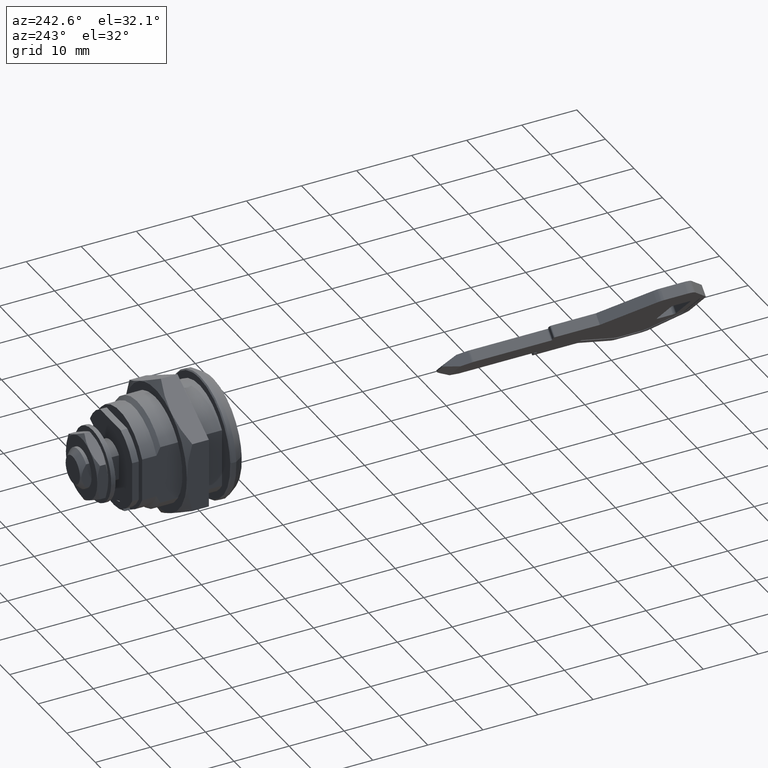
[diagram: clean part render]
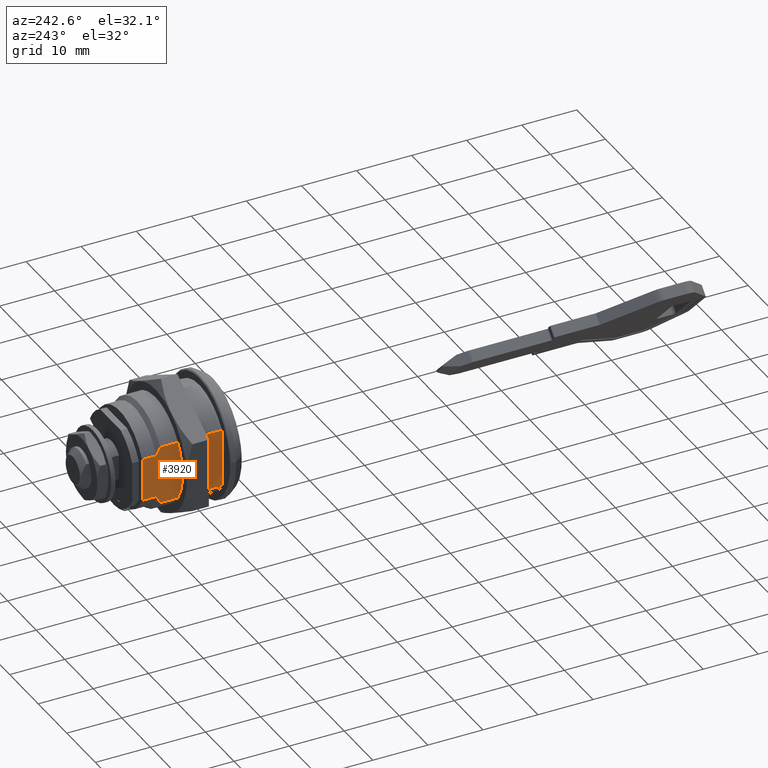
[diagram: same view with one face highlighted and labeled with its STEP entity id]
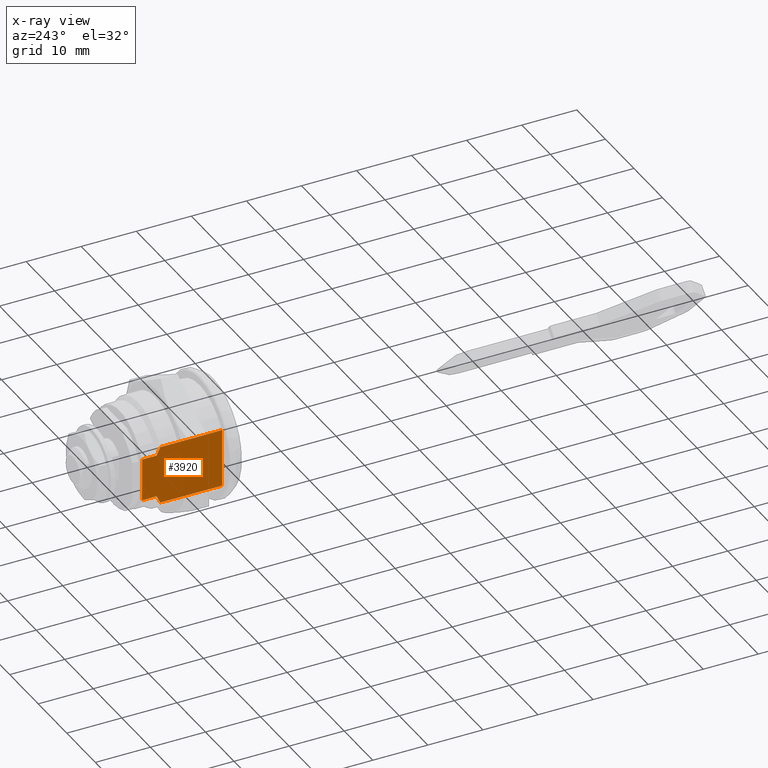
[diagram: x-ray of the same camera — body ghosted, the highlighted face saturated]
A machine part, auxiliary view. The second image highlights one B-rep face of the part: STEP entity #3920.
The next image is the same camera in x-ray: the body ghosted, the highlighted face saturated — about 0% of this face is hidden behind the body in this view.
In plain terms, the highlighted face is a freeform B-spline surface patch.
Its self-contained STEP definition (entity closure, byte-faithful):
#3574=CARTESIAN_POINT('',(-7.900000000000000,11.199999999999999,5.276362383349420));
#3575=VERTEX_POINT('',#3574);
#3576=CARTESIAN_POINT('',(-7.900000000000000,11.900000000000000,3.876854394996330));
#3577=VERTEX_POINT('',#3576);
#3578=CARTESIAN_POINT('',(-7.900000000000000,11.199999999999999,5.276362383349420));
#3579=CARTESIAN_POINT('',(-7.900000000000000,11.453497123079240,4.819945159833718));
#3580=CARTESIAN_POINT('',(-7.900000000000000,11.689459101524999,4.354757281709540));
#3581=CARTESIAN_POINT('',(-7.900000000000000,11.900000000000000,3.876854395036450));
#3582=QUASI_UNIFORM_CURVE('',3,(#3578,#3579,#3580,#3581),.UNSPECIFIED.,.F.,.U.);
#3583=EDGE_CURVE('',#3575,#3577,#3582,.T.);
#3658=CARTESIAN_POINT('',(-7.900000000000000,11.199999999999999,-5.276362383309820));
#3659=VERTEX_POINT('',#3658);
#3676=CARTESIAN_POINT('',(-7.900000000000000,11.900000000000000,-3.876854394996045));
#3677=VERTEX_POINT('',#3676);
#3678=CARTESIAN_POINT('',(-7.900000000000000,11.900000000000000,-3.876854394996045));
#3679=CARTESIAN_POINT('',(-7.900000000000000,11.689459101529749,-4.354757281658444));
#3680=CARTESIAN_POINT('',(-7.900000000000000,11.453497123073310,-4.819945159804134));
#3681=CARTESIAN_POINT('',(-7.900000000000000,11.199999999999781,-5.276362383309520));
#3682=QUASI_UNIFORM_CURVE('',3,(#3678,#3679,#3680,#3681),.UNSPECIFIED.,.F.,.U.);
#3683=EDGE_CURVE('',#3677,#3659,#3682,.T.);
#3719=CARTESIAN_POINT('',(-7.900000000000000,14.500000000000000,3.876854394996330));
#3720=VERTEX_POINT('',#3719);
#3741=CARTESIAN_POINT('',(-7.900000000000000,11.900000000000000,3.876854394996330));
#3742=CARTESIAN_POINT('',(-7.900000000000000,14.500000000000000,3.876854394996330));
#3743=QUASI_UNIFORM_CURVE('',1,(#3741,#3742),.UNSPECIFIED.,.F.,.U.);
#3744=EDGE_CURVE('',#3577,#3720,#3743,.T.);
#3793=CARTESIAN_POINT('',(-7.900000000000000,14.500000000000000,-3.876854394996045));
#3794=VERTEX_POINT('',#3793);
#3795=CARTESIAN_POINT('',(-7.900000000000000,14.500000000000000,-3.876854394996045));
#3796=CARTESIAN_POINT('',(-7.900000000000000,11.900000000000000,-3.876854394996045));
#3797=QUASI_UNIFORM_CURVE('',1,(#3795,#3796),.UNSPECIFIED.,.F.,.U.);
#3798=EDGE_CURVE('',#3794,#3677,#3797,.T.);
#3825=CARTESIAN_POINT('',(-7.900000000000000,14.500000000000000,3.876854394996330));
#3826=CARTESIAN_POINT('',(-7.900000000000000,14.500000000000000,-3.876854394996045));
#3827=QUASI_UNIFORM_CURVE('',1,(#3825,#3826),.UNSPECIFIED.,.F.,.U.);
#3828=EDGE_CURVE('',#3720,#3794,#3827,.T.);
#3860=CARTESIAN_POINT('',(-7.900000000000000,4.837195E-016,-5.276362383309820));
#3861=VERTEX_POINT('',#3860);
#3862=CARTESIAN_POINT('',(-7.900000000000000,11.199999999999999,-5.276362383309820));
#3863=CARTESIAN_POINT('',(-7.900000000000000,4.837195E-016,-5.276362383309820));
#3864=QUASI_UNIFORM_CURVE('',1,(#3862,#3863),.UNSPECIFIED.,.F.,.U.);
#3865=EDGE_CURVE('',#3659,#3861,#3864,.T.);
#3895=CARTESIAN_POINT('',(-7.900000000000000,-0.724274971896186,-5.803470964951221));
#3896=CARTESIAN_POINT('',(-7.900000000000000,-0.724274971896186,5.803471248036957));
#3897=CARTESIAN_POINT('',(-7.900000000000000,15.224275360816490,-5.803470964951221));
#3898=CARTESIAN_POINT('',(-7.900000000000000,15.224275360816490,5.803471248036957));
#3899=B_SPLINE_SURFACE_WITH_KNOTS('',1,1,((#3895,#3897),(#3896,#3898)),.UNSPECIFIED.,.F.,.F.,.U.,(2,2),(2,2),(0.0,11.606942212988180),(0.0,15.948550332712680),.UNSPECIFIED.);
#3900=ORIENTED_EDGE('',*,*,#3798,.T.);
#3901=ORIENTED_EDGE('',*,*,#3683,.T.);
#3902=ORIENTED_EDGE('',*,*,#3865,.T.);
#3903=CARTESIAN_POINT('',(-7.900000000000000,4.837195E-016,5.276362383349420));
#3904=VERTEX_POINT('',#3903);
#3905=CARTESIAN_POINT('',(-7.900000000000000,4.837195E-016,5.276362383349420));
#3906=CARTESIAN_POINT('',(-7.900000000000000,4.837195E-016,-5.276362383309820));
#3907=QUASI_UNIFORM_CURVE('',1,(#3905,#3906),.UNSPECIFIED.,.F.,.U.);
#3908=EDGE_CURVE('',#3904,#3861,#3907,.T.);
#3909=ORIENTED_EDGE('',*,*,#3908,.F.);
#3910=CARTESIAN_POINT('',(-7.900000000000000,11.199999999999999,5.276362383349420));
#3911=CARTESIAN_POINT('',(-7.900000000000000,4.837195E-016,5.276362383349420));
#3912=QUASI_UNIFORM_CURVE('',1,(#3910,#3911),.UNSPECIFIED.,.F.,.U.);
#3913=EDGE_CURVE('',#3575,#3904,#3912,.T.);
#3914=ORIENTED_EDGE('',*,*,#3913,.F.);
#3915=ORIENTED_EDGE('',*,*,#3583,.T.);
#3916=ORIENTED_EDGE('',*,*,#3744,.T.);
#3917=ORIENTED_EDGE('',*,*,#3828,.T.);
#3918=EDGE_LOOP('',(#3900,#3901,#3902,#3909,#3914,#3915,#3916,#3917));
#3919=FACE_OUTER_BOUND('',#3918,.T.);
#3920=ADVANCED_FACE('',(#3919),#3899,.T.);